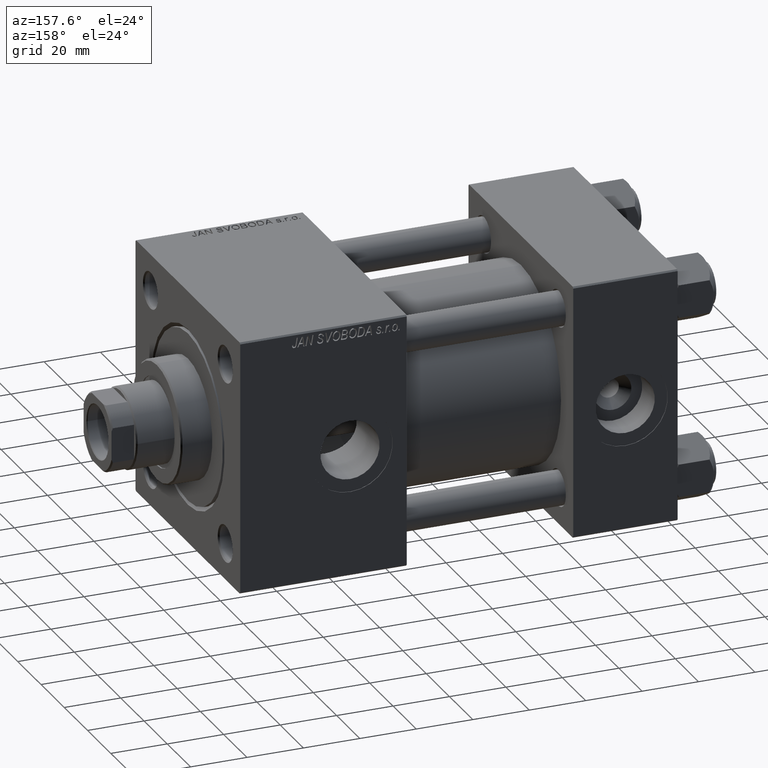
[diagram: clean part render]
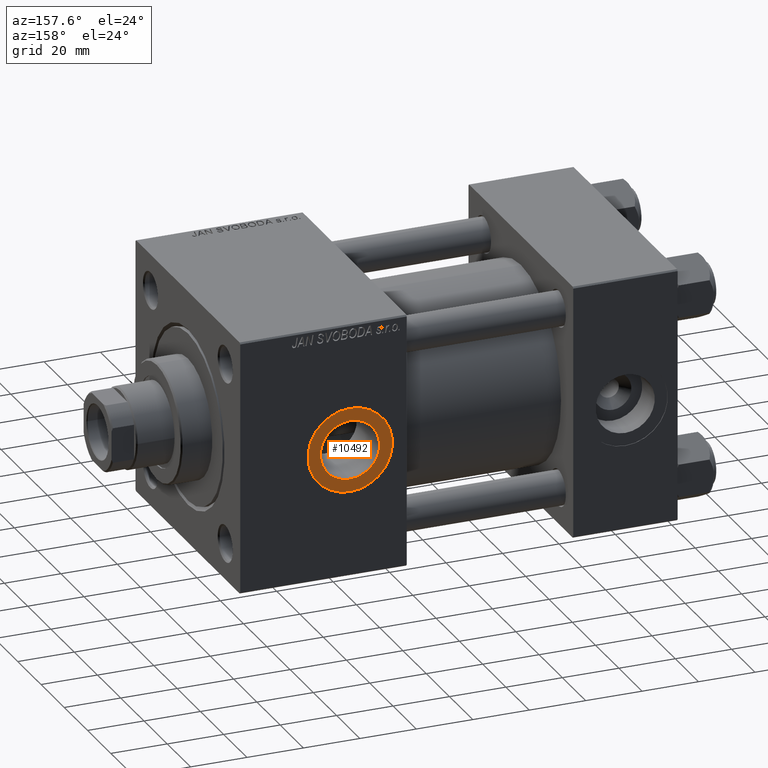
[diagram: same view with one face highlighted and labeled with its STEP entity id]
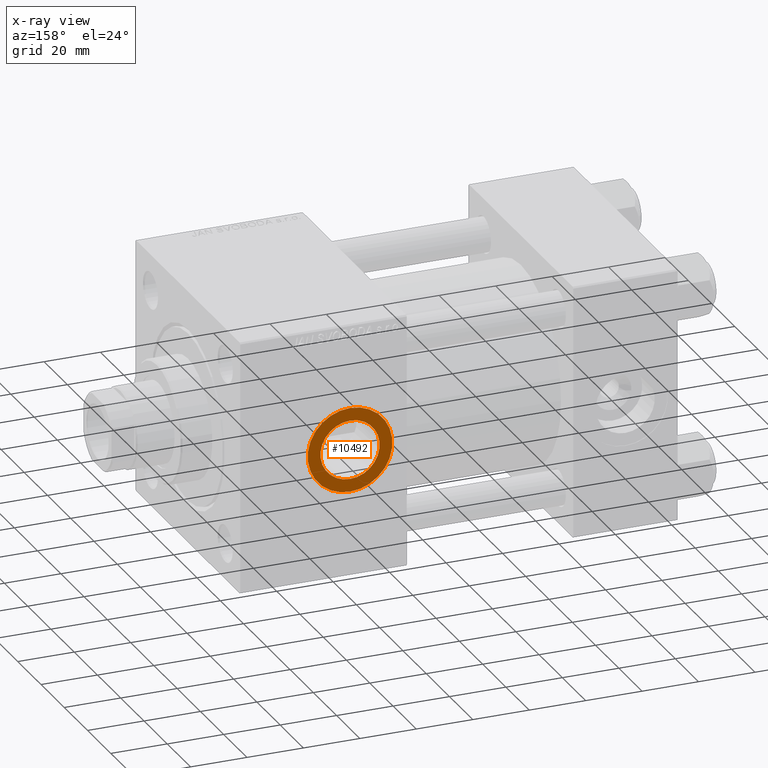
[diagram: x-ray of the same camera — body ghosted, the highlighted face saturated]
A machine part, auxiliary view. The second image highlights one B-rep face of the part: STEP entity #10492.
The next image is the same camera in x-ray: the body ghosted, the highlighted face saturated — about 0% of this face is hidden behind the body in this view.
In plain terms, the highlighted planar face has unit normal (0, 1, 0).
Its self-contained STEP definition (entity closure, byte-faithful):
#4018 = CARTESIAN_POINT ( 'NONE',  ( 116.0000000000000000, 44.80000000000001137, 0.000000000000000000 ) ) ;
#5010 = DIRECTION ( 'NONE',  ( 0.000000000000000000, 1.000000000000000000, 0.000000000000000000 ) ) ;
#6148 = PLANE ( 'NONE',  #44966 ) ;
#6152 = CIRCLE ( 'NONE', #27261, 15.00000000000001243 ) ;
#7086 = VERTEX_POINT ( 'NONE', #21764 ) ;
#7528 = CIRCLE ( 'NONE', #32701, 10.48000000000000043 ) ;
#8108 = EDGE_CURVE ( 'NONE', #49335, #11979, #26348, .T. ) ;
#8577 = DIRECTION ( 'NONE',  ( 0.000000000000000000, 0.000000000000000000, 1.000000000000000000 ) ) ;
#8962 = CARTESIAN_POINT ( 'NONE',  ( 116.0000000000000000, 44.80000000000001137, 0.000000000000000000 ) ) ;
#9513 = EDGE_LOOP ( 'NONE', ( #47590, #30496 ) ) ;
#9536 = DIRECTION ( 'NONE',  ( 0.000000000000000000, 0.000000000000000000, 1.000000000000000000 ) ) ;
#10492 = ADVANCED_FACE ( 'NONE', ( #17843, #13775 ), #6148, .T. ) ;
#10533 = DIRECTION ( 'NONE',  ( 0.000000000000000000, 1.000000000000000000, 0.000000000000000000 ) ) ;
#10589 = ORIENTED_EDGE ( 'NONE', *, *, #40952, .F. ) ;
#11979 = VERTEX_POINT ( 'NONE', #32774 ) ;
#12714 = VERTEX_POINT ( 'NONE', #39220 ) ;
#12763 = AXIS2_PLACEMENT_3D ( 'NONE', #25064, #44121, #13871 ) ;
#13775 = FACE_OUTER_BOUND ( 'NONE', #9513, .T. ) ;
#13871 = DIRECTION ( 'NONE',  ( 0.000000000000000000, 0.000000000000000000, 1.000000000000000000 ) ) ;
#17843 = FACE_BOUND ( 'NONE', #39449, .T. ) ;
#18921 = DIRECTION ( 'NONE',  ( 0.000000000000000000, 0.000000000000000000, 1.000000000000000000 ) ) ;
#21056 = ORIENTED_EDGE ( 'NONE', *, *, #26271, .F. ) ;
#21764 = CARTESIAN_POINT ( 'NONE',  ( 116.0000000000000000, 44.80000000000001847, 10.48000000000000043 ) ) ;
#23725 = CARTESIAN_POINT ( 'NONE',  ( 116.0000000000000000, 44.80000000000001847, 0.000000000000000000 ) ) ;
#25064 = CARTESIAN_POINT ( 'NONE',  ( 116.0000000000000000, 44.80000000000001847, 0.000000000000000000 ) ) ;
#25732 = CIRCLE ( 'NONE', #12763, 10.48000000000000043 ) ;
#26271 = EDGE_CURVE ( 'NONE', #12714, #7086, #7528, .T. ) ;
#26348 = CIRCLE ( 'NONE', #28795, 15.00000000000001243 ) ;
#27261 = AXIS2_PLACEMENT_3D ( 'NONE', #44330, #10533, #9536 ) ;
#27553 = DIRECTION ( 'NONE',  ( 0.000000000000000000, 1.000000000000000000, 0.000000000000000000 ) ) ;
#28795 = AXIS2_PLACEMENT_3D ( 'NONE', #4018, #5010, #8577 ) ;
#30496 = ORIENTED_EDGE ( 'NONE', *, *, #8108, .T. ) ;
#32701 = AXIS2_PLACEMENT_3D ( 'NONE', #23725, #27553, #18921 ) ;
#32774 = CARTESIAN_POINT ( 'NONE',  ( 116.0000000000000000, 44.80000000000001137, 15.00000000000001243 ) ) ;
#37129 = DIRECTION ( 'NONE',  ( 0.000000000000000000, -0.000000000000000000, 1.000000000000000000 ) ) ;
#37711 = EDGE_CURVE ( 'NONE', #11979, #49335, #6152, .T. ) ;
#39220 = CARTESIAN_POINT ( 'NONE',  ( 116.0000000000000000, 44.80000000000001847, -10.48000000000000043 ) ) ;
#39449 = EDGE_LOOP ( 'NONE', ( #10589, #21056 ) ) ;
#40697 = DIRECTION ( 'NONE',  ( 0.000000000000000000, 1.000000000000000000, 0.000000000000000000 ) ) ;
#40952 = EDGE_CURVE ( 'NONE', #7086, #12714, #25732, .T. ) ;
#44121 = DIRECTION ( 'NONE',  ( 0.000000000000000000, 1.000000000000000000, 0.000000000000000000 ) ) ;
#44330 = CARTESIAN_POINT ( 'NONE',  ( 116.0000000000000000, 44.80000000000001137, 0.000000000000000000 ) ) ;
#44966 = AXIS2_PLACEMENT_3D ( 'NONE', #8962, #40697, #37129 ) ;
#47590 = ORIENTED_EDGE ( 'NONE', *, *, #37711, .T. ) ;
#48603 = CARTESIAN_POINT ( 'NONE',  ( 116.0000000000000000, 44.80000000000001137, -15.00000000000001243 ) ) ;
#49335 = VERTEX_POINT ( 'NONE', #48603 ) ;